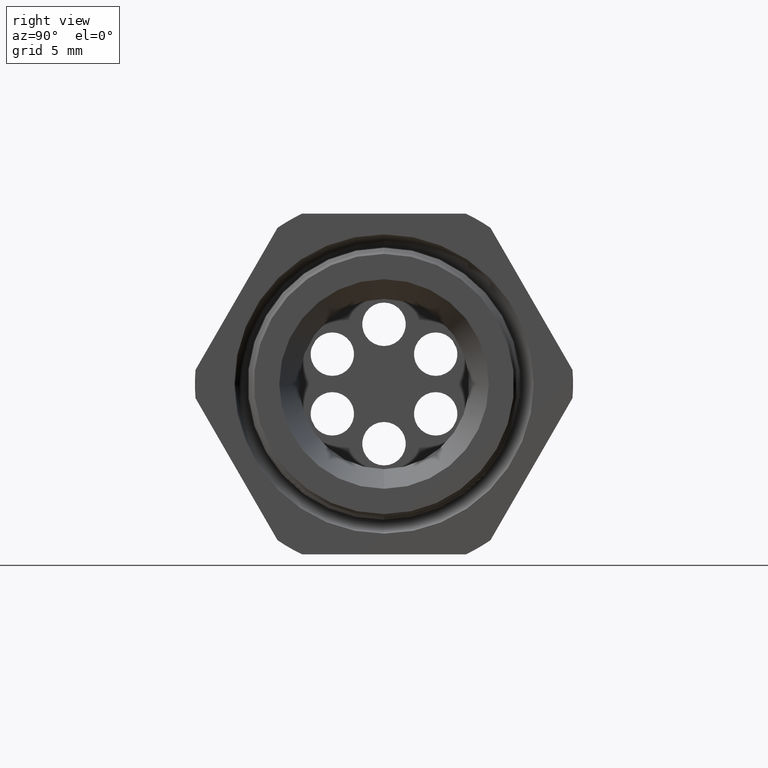
[diagram: clean part render]
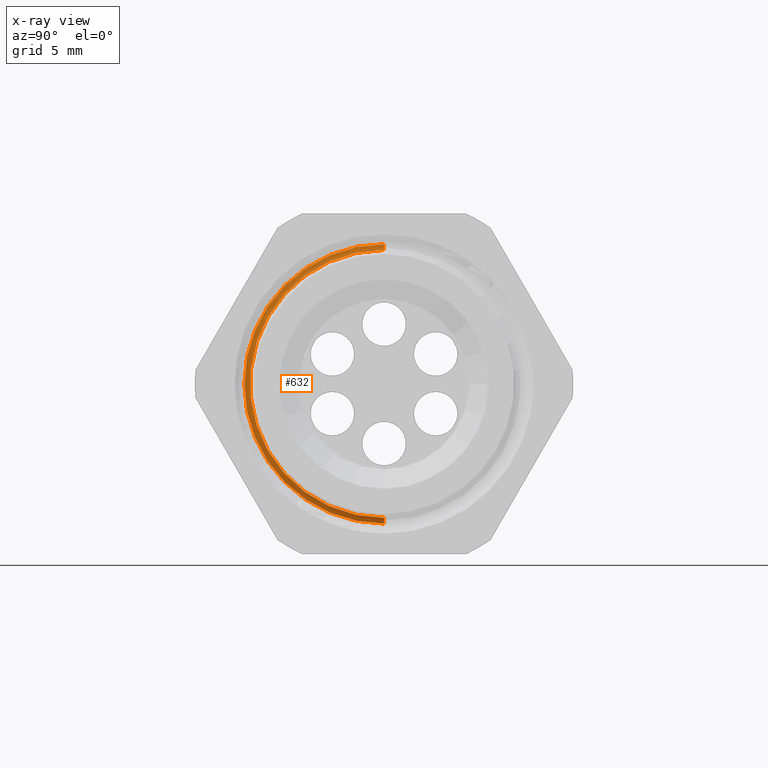
[diagram: x-ray — body ghosted, one internal face saturated and labeled with its STEP entity id]
A machine part, right view, then the same camera in x-ray: the body is ghosted and one INTERNAL B-rep face — a face not visible from any outside direction — is saturated and labeled: STEP entity #632.
In plain terms, the highlighted conical surface has half-angle 61.5 deg.
Its self-contained STEP definition (entity closure, byte-faithful):
#404 = EDGE_CURVE ( 'NONE', #902, #899, #2019, .T. ) ;
#632 = ADVANCED_FACE ( 'NONE', ( #2314 ), #2313, .T. ) ;
#633 = EDGE_LOOP ( 'NONE', ( #634, #635, #637, #638 ) ) ;
#634 = ORIENTED_EDGE ( 'NONE', *, *, #898, .F. ) ;
#635 = ORIENTED_EDGE ( 'NONE', *, *, #636, .F. ) ;
#636 = EDGE_CURVE ( 'NONE', #801, #800, #2308, .T. ) ;
#637 = ORIENTED_EDGE ( 'NONE', *, *, #904, .T. ) ;
#638 = ORIENTED_EDGE ( 'NONE', *, *, #404, .T. ) ;
#800 = VERTEX_POINT ( 'NONE', #2559 ) ;
#801 = VERTEX_POINT ( 'NONE', #2558 ) ;
#898 = EDGE_CURVE ( 'NONE', #800, #899, #2752, .T. ) ;
#899 = VERTEX_POINT ( 'NONE', #2748 ) ;
#902 = VERTEX_POINT ( 'NONE', #2742 ) ;
#904 = EDGE_CURVE ( 'NONE', #801, #902, #2741, .T. ) ;
#2016 = DIRECTION ( 'NONE',  ( 0.0000000000000000000, 0.0000000000000000000, 1.000000000000000000 ) ) ;
#2017 = DIRECTION ( 'NONE',  ( 1.000000000000000000, 0.0000000000000000000, 0.0000000000000000000 ) ) ;
#2018 = AXIS2_PLACEMENT_3D ( 'NONE', #2024, #2017, #2016 ) ;
#2019 = CIRCLE ( 'NONE', #2018, 0.3854371049501675900 ) ;
#2024 = CARTESIAN_POINT ( 'NONE',  ( -0.5802408424937912600, 0.0000000000000000000, 0.0000000000000000000 ) ) ;
#2305 = DIRECTION ( 'NONE',  ( 0.0000000000000000000, 0.0000000000000000000, -1.000000000000000000 ) ) ;
#2306 = DIRECTION ( 'NONE',  ( 1.000000000000000000, 0.0000000000000000000, 0.0000000000000000000 ) ) ;
#2307 = AXIS2_PLACEMENT_3D ( 'NONE', #2312, #2306, #2305 ) ;
#2308 = CIRCLE ( 'NONE', #2307, 0.3696307351718083300 ) ;
#2309 = DIRECTION ( 'NONE',  ( 0.0000000000000000000, 0.0000000000000000000, 1.000000000000000000 ) ) ;
#2310 = DIRECTION ( 'NONE',  ( -1.000000000000000000, 0.0000000000000000000, 0.0000000000000000000 ) ) ;
#2311 = AXIS2_PLACEMENT_3D ( 'NONE', #2318, #2310, #2309 ) ;
#2312 = CARTESIAN_POINT ( 'NONE',  ( -0.5716586839320380000, 0.0000000000000000000, 0.0000000000000000000 ) ) ;
#2313 = CONICAL_SURFACE ( 'NONE', #2311, 0.3950000000000000200, 1.073377489976500500 ) ;
#2314 = FACE_OUTER_BOUND ( 'NONE', #633, .T. ) ;
#2318 = CARTESIAN_POINT ( 'NONE',  ( -0.5854330708661420500, 0.0000000000000000000, 0.0000000000000000000 ) ) ;
#2558 = CARTESIAN_POINT ( 'NONE',  ( -0.5716586839320380000, 0.0000000000000000000, 0.3696307351718083300 ) ) ;
#2559 = CARTESIAN_POINT ( 'NONE',  ( -0.5716586839320380000, 4.623457067722416200E-017, -0.3696307351718083300 ) ) ;
#2741 = LINE ( 'NONE', #2802, #2801 ) ;
#2742 = CARTESIAN_POINT ( 'NONE',  ( -0.5802408424937912600, 0.0000000000000000000, 0.3854371049501675900 ) ) ;
#2748 = CARTESIAN_POINT ( 'NONE',  ( -0.5802408424937912600, 4.722094547959215600E-017, -0.3854371049501675900 ) ) ;
#2749 = DIRECTION ( 'NONE',  ( -0.4771587602596191200, 1.076240564057387800E-016, -0.8788171126619595000 ) ) ;
#2750 = VECTOR ( 'NONE', #2749, 39.37007874015748100 ) ;
#2751 = CARTESIAN_POINT ( 'NONE',  ( -0.5854330708661420500, 4.837354856632045600E-017, -0.3950000000000000200 ) ) ;
#2752 = LINE ( 'NONE', #2751, #2750 ) ;
#2800 = DIRECTION ( 'NONE',  ( -0.4771587602596191200, 0.0000000000000000000, 0.8788171126619595000 ) ) ;
#2801 = VECTOR ( 'NONE', #2800, 39.37007874015748100 ) ;
#2802 = CARTESIAN_POINT ( 'NONE',  ( -0.5854330708661420500, 0.0000000000000000000, 0.3950000000000000200 ) ) ;